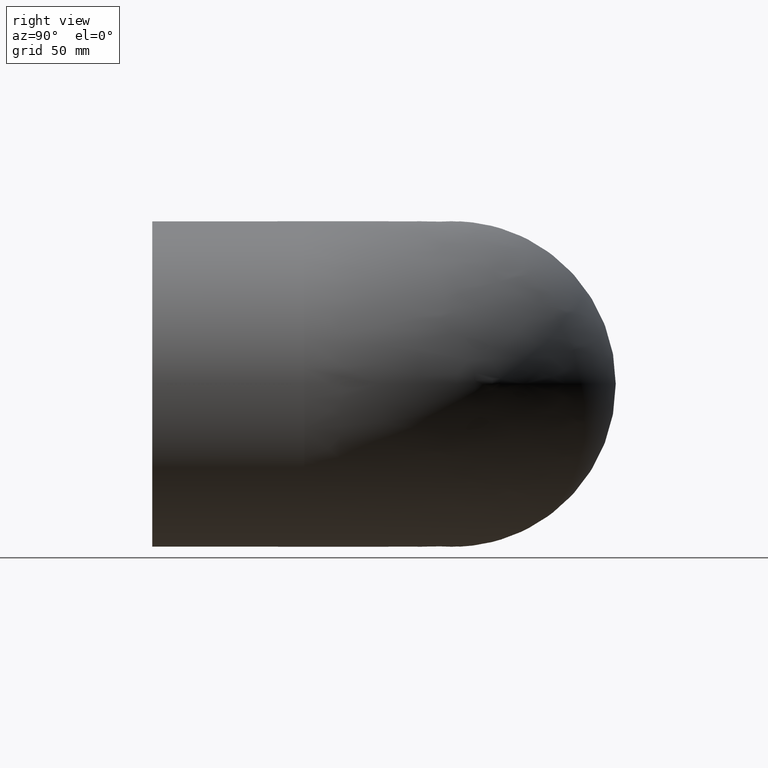
[diagram: clean part render]
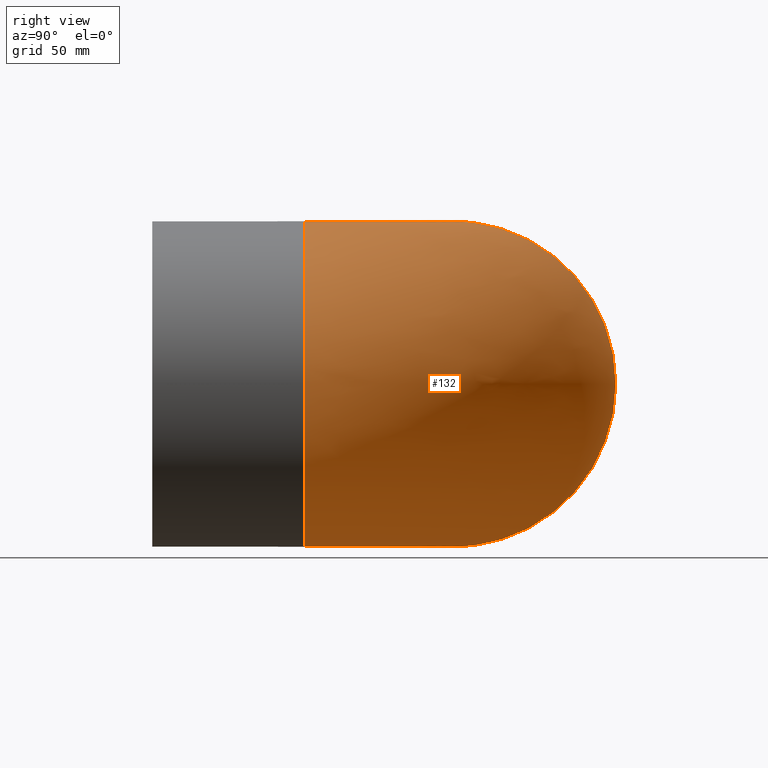
[diagram: same view with one face highlighted and labeled with its STEP entity id]
A machine part, right view. The second image highlights one B-rep face of the part: STEP entity #132.
In plain terms, the highlighted face is a freeform B-spline surface patch.
Its self-contained STEP definition (entity closure, byte-faithful):
#16=(
BOUNDED_SURFACE()
B_SPLINE_SURFACE(2,2,((#226,#227,#228),(#229,#230,#231),(#232,#233,#234),
(#235,#236,#237),(#238,#239,#240),(#241,#242,#243),(#244,#245,#246),(#247,
#248,#249),(#250,#251,#252)),.UNSPECIFIED.,.F.,.F.,.F.)
B_SPLINE_SURFACE_WITH_KNOTS((3,2,2,2,3),(3,3),(-2.72148117544732,-1.36074058772366,
0.,1.36074058772366,2.72148117544732),(1.5707963267949,3.14159265358979),
 .UNSPECIFIED.)
GEOMETRIC_REPRESENTATION_ITEM()
RATIONAL_B_SPLINE_SURFACE(((1.,0.707106781186548,1.),(0.777339827249664,
0.549662263134617,0.777339827249664),(1.,0.707106781186548,1.),(0.777339827249664,
0.549662263134617,0.777339827249664),(1.,0.707106781186548,1.),(0.777339827249664,
0.549662263134617,0.777339827249664),(1.,0.707106781186548,1.),(0.777339827249664,
0.549662263134617,0.777339827249664),(1.,0.707106781186548,1.)))
REPRESENTATION_ITEM('')
SURFACE()
);
#40=FACE_OUTER_BOUND('',#56,.T.);
#56=EDGE_LOOP('',(#111,#112));
#73=CIRCLE('',#151,92.);
#74=CIRCLE('',#152,92.);
#84=VERTEX_POINT('',#253);
#85=VERTEX_POINT('',#254);
#95=EDGE_CURVE('',#84,#85,#73,.T.);
#96=EDGE_CURVE('',#85,#84,#74,.T.);
#111=ORIENTED_EDGE('',*,*,#95,.T.);
#112=ORIENTED_EDGE('',*,*,#96,.T.);
#132=ADVANCED_FACE('',(#40),#16,.F.);
#151=AXIS2_PLACEMENT_3D('',#255,#186,#187);
#152=AXIS2_PLACEMENT_3D('',#256,#188,#189);
#186=DIRECTION('center_axis',(1.,0.,0.));
#187=DIRECTION('ref_axis',(0.,0.,-1.));
#188=DIRECTION('center_axis',(6.12323399573677E-17,1.,0.));
#189=DIRECTION('ref_axis',(0.,0.,-1.));
#226=CARTESIAN_POINT('Ctrl Pts',(-84.,-84.,37.5233260785875));
#227=CARTESIAN_POINT('Ctrl Pts',(-84.,-84.,37.5233260785875));
#228=CARTESIAN_POINT('Ctrl Pts',(-84.,-84.,37.5233260785875));
#229=CARTESIAN_POINT('Ctrl Pts',(-84.,-53.6333478134982,105.502342073168));
#230=CARTESIAN_POINT('Ctrl Pts',(-53.6333478134982,-53.6333478134982,105.502342073168));
#231=CARTESIAN_POINT('Ctrl Pts',(-53.6333478134982,-84.,105.502342073168));
#232=CARTESIAN_POINT('Ctrl Pts',(-84.,19.1833260932509,89.977775033616));
#233=CARTESIAN_POINT('Ctrl Pts',(19.1833260932509,19.1833260932509,89.977775033616));
#234=CARTESIAN_POINT('Ctrl Pts',(19.1833260932509,-84.,89.977775033616));
#235=CARTESIAN_POINT('Ctrl Pts',(-84.,92.,74.4532079940641));
#236=CARTESIAN_POINT('Ctrl Pts',(92.,92.,74.4532079940641));
#237=CARTESIAN_POINT('Ctrl Pts',(92.,-84.,74.4532079940641));
#238=CARTESIAN_POINT('Ctrl Pts',(-84.,92.,0.));
#239=CARTESIAN_POINT('Ctrl Pts',(92.,92.,0.));
#240=CARTESIAN_POINT('Ctrl Pts',(92.,-84.,0.));
#241=CARTESIAN_POINT('Ctrl Pts',(-84.,92.,-74.4532079940641));
#242=CARTESIAN_POINT('Ctrl Pts',(92.,92.,-74.4532079940641));
#243=CARTESIAN_POINT('Ctrl Pts',(92.,-84.,-74.4532079940641));
#244=CARTESIAN_POINT('Ctrl Pts',(-84.,19.1833260932509,-89.977775033616));
#245=CARTESIAN_POINT('Ctrl Pts',(19.1833260932509,19.1833260932509,-89.977775033616));
#246=CARTESIAN_POINT('Ctrl Pts',(19.1833260932509,-84.,-89.977775033616));
#247=CARTESIAN_POINT('Ctrl Pts',(-84.,-53.6333478134982,-105.502342073168));
#248=CARTESIAN_POINT('Ctrl Pts',(-53.6333478134982,-53.6333478134982,-105.502342073168));
#249=CARTESIAN_POINT('Ctrl Pts',(-53.6333478134982,-84.,-105.502342073168));
#250=CARTESIAN_POINT('Ctrl Pts',(-84.,-84.,-37.5233260785875));
#251=CARTESIAN_POINT('Ctrl Pts',(-84.,-84.,-37.5233260785875));
#252=CARTESIAN_POINT('Ctrl Pts',(-84.,-84.,-37.5233260785875));
#253=CARTESIAN_POINT('',(-84.,-84.,-37.5233260785876));
#254=CARTESIAN_POINT('',(-84.,-84.,37.5233260785876));
#255=CARTESIAN_POINT('Origin',(-84.,0.,0.));
#256=CARTESIAN_POINT('Origin',(-5.14351655641888E-15,-84.,0.));